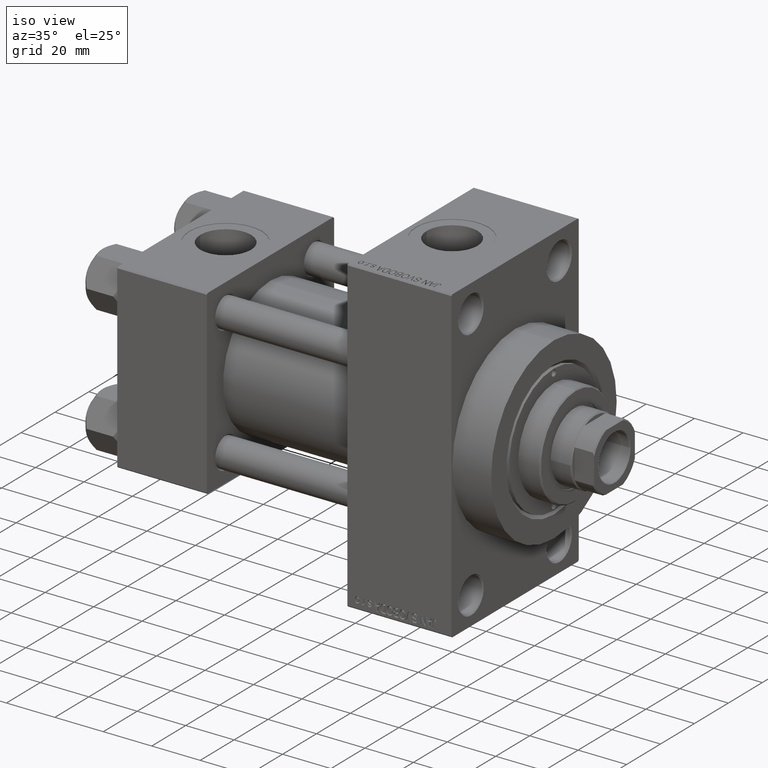
[diagram: clean part render]
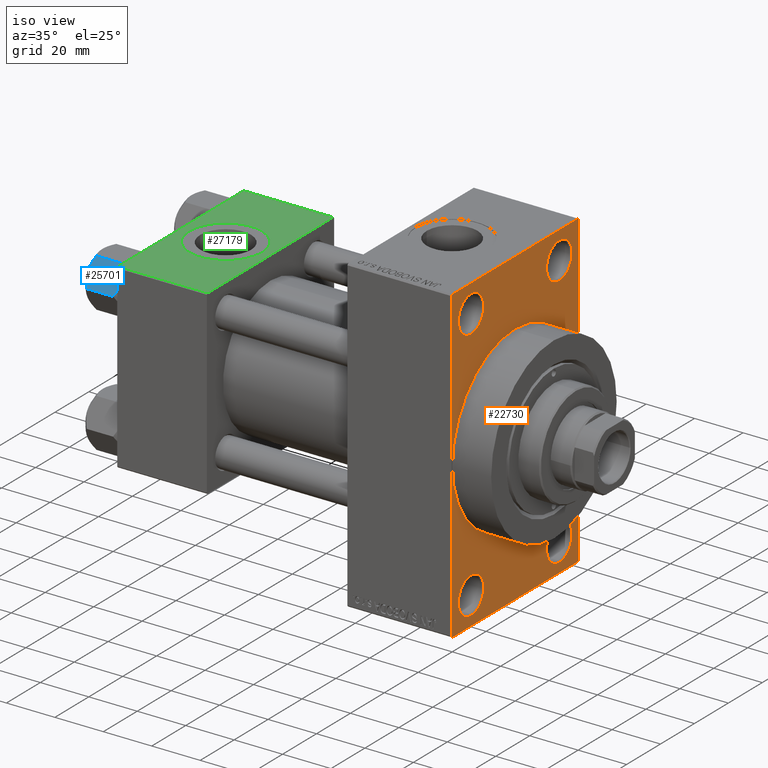
[diagram: same view with three faces highlighted in distinct colors, each labeled with its STEP entity id]
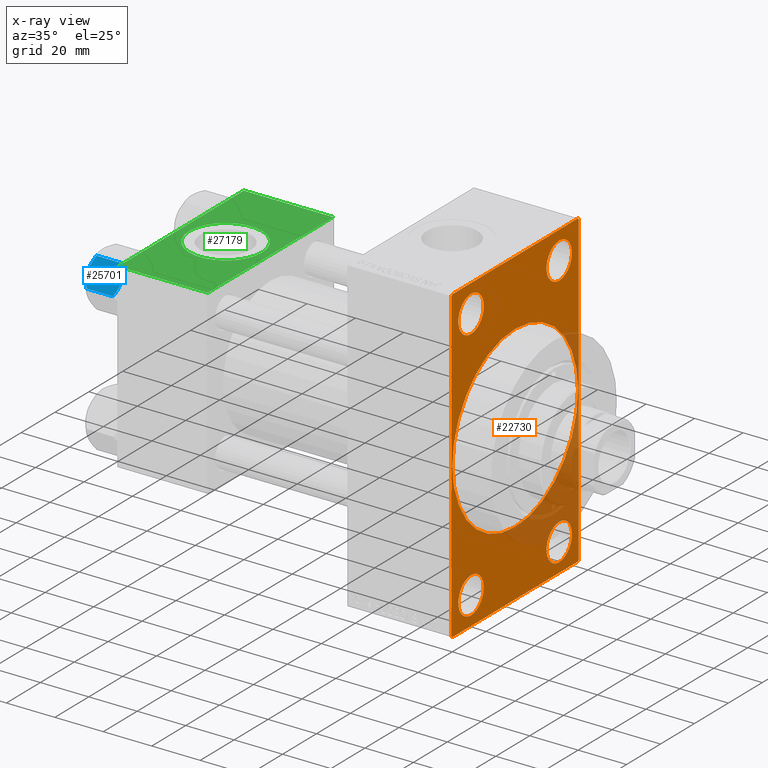
[diagram: x-ray of the same camera — body ghosted, the three highlighted faces saturated]
A machine part, iso view with three faces highlighted in distinct colors.
The next image is the same camera in x-ray (body ghosted, the three faces saturated) — at least one of them is partly hidden behind the body in this view.
Their STEP definitions:

[orange] entity #22730 — the highlighted planar face has unit normal (-1, 0, 0).
#53 = LINE ( 'NONE', #44809, #21056 ) ;
#406 = CIRCLE ( 'NONE', #29740, 7.500000000000007105 ) ;
#496 = ORIENTED_EDGE ( 'NONE', *, *, #21177, .T. ) ;
#627 = FACE_BOUND ( 'NONE', #29632, .T. ) ;
#1326 = EDGE_CURVE ( 'NONE', #9991, #41071, #30880, .T. ) ;
#1596 = EDGE_LOOP ( 'NONE', ( #31821, #29113 ) ) ;
#1713 = AXIS2_PLACEMENT_3D ( 'NONE', #2020, #40280, #37058 ) ;
#1742 = EDGE_CURVE ( 'NONE', #12420, #33083, #38916, .T. ) ;
#1823 = CARTESIAN_POINT ( 'NONE',  ( 138.0000000000000000, 37.50000000000000000, 63.49999999999998579 ) ) ;
#2020 = CARTESIAN_POINT ( 'NONE',  ( 138.0000000000000000, 26.00000000000000000, -52.49999999999999289 ) ) ;
#2037 = DIRECTION ( 'NONE',  ( 0.000000000000000000, 0.000000000000000000, 1.000000000000000000 ) ) ;
#2142 = CARTESIAN_POINT ( 'NONE',  ( 138.0000000000000000, 26.00000000000000000, 60.00000000000000000 ) ) ;
#2268 = ORIENTED_EDGE ( 'NONE', *, *, #1326, .T. ) ;
#3177 = CIRCLE ( 'NONE', #7130, 7.500000000000007105 ) ;
#3627 = PLANE ( 'NONE',  #25867 ) ;
#3871 = FACE_BOUND ( 'NONE', #11512, .T. ) ;
#3933 = DIRECTION ( 'NONE',  ( 1.000000000000000000, 0.000000000000000000, 0.000000000000000000 ) ) ;
#3993 = ORIENTED_EDGE ( 'NONE', *, *, #42059, .F. ) ;
#4116 = CARTESIAN_POINT ( 'NONE',  ( 138.0000000000000000, 0.000000000000000000, 0.000000000000000000 ) ) ;
#4257 = EDGE_CURVE ( 'NONE', #19310, #31043, #4825, .T. ) ;
#4568 = DIRECTION ( 'NONE',  ( -1.000000000000000000, 0.000000000000000000, -0.000000000000000000 ) ) ;
#4656 = EDGE_CURVE ( 'NONE', #26770, #16768, #19954, .T. ) ;
#4676 = CARTESIAN_POINT ( 'NONE',  ( 138.0000000000000000, 0.000000000000000000, 0.000000000000000000 ) ) ;
#4729 = ORIENTED_EDGE ( 'NONE', *, *, #29406, .T. ) ;
#4825 = LINE ( 'NONE', #16231, #28679 ) ;
#4972 = CARTESIAN_POINT ( 'NONE',  ( 138.0000000000000000, 37.49999999999999289, -63.50000000000001421 ) ) ;
#7130 = AXIS2_PLACEMENT_3D ( 'NONE', #39591, #12993, #39344 ) ;
#7180 = DIRECTION ( 'NONE',  ( 0.000000000000000000, -1.000000000000000000, -1.850371707708594563E-16 ) ) ;
#7503 = VECTOR ( 'NONE', #7180, 1000.000000000000000 ) ;
#7582 = FACE_OUTER_BOUND ( 'NONE', #29707, .T. ) ;
#7915 = LINE ( 'NONE', #34278, #7503 ) ;
#8129 = DIRECTION ( 'NONE',  ( -1.000000000000000000, 0.000000000000000000, -0.000000000000000000 ) ) ;
#9001 = VERTEX_POINT ( 'NONE', #27327 ) ;
#9168 = VERTEX_POINT ( 'NONE', #19007 ) ;
#9991 = VERTEX_POINT ( 'NONE', #41006 ) ;
#10655 = ORIENTED_EDGE ( 'NONE', *, *, #42772, .T. ) ;
#10907 = ORIENTED_EDGE ( 'NONE', *, *, #29522, .T. ) ;
#11321 = VERTEX_POINT ( 'NONE', #34966 ) ;
#11512 = EDGE_LOOP ( 'NONE', ( #3993, #19331 ) ) ;
#12265 = AXIS2_PLACEMENT_3D ( 'NONE', #43273, #4568, #45575 ) ;
#12315 = CARTESIAN_POINT ( 'NONE',  ( 138.0000000000000000, -25.99999999999999645, -60.00000000000000000 ) ) ;
#12420 = VERTEX_POINT ( 'NONE', #2142 ) ;
#12727 = CARTESIAN_POINT ( 'NONE',  ( 138.0000000000000000, 26.00000000000000000, 52.49999999999999289 ) ) ;
#12932 = DIRECTION ( 'NONE',  ( -1.000000000000000000, 0.000000000000000000, -0.000000000000000000 ) ) ;
#12993 = DIRECTION ( 'NONE',  ( -1.000000000000000000, 0.000000000000000000, -0.000000000000000000 ) ) ;
#13149 = CARTESIAN_POINT ( 'NONE',  ( 138.0000000000000000, 4.531193156845206793E-15, -37.00000000000000000 ) ) ;
#13411 = VERTEX_POINT ( 'NONE', #13932 ) ;
#13932 = CARTESIAN_POINT ( 'NONE',  ( 138.0000000000000000, 36.99999999999999289, -64.00000000000000000 ) ) ;
#15166 = ORIENTED_EDGE ( 'NONE', *, *, #35414, .T. ) ;
#15959 = EDGE_CURVE ( 'NONE', #33083, #12420, #406, .T. ) ;
#16231 = CARTESIAN_POINT ( 'NONE',  ( 138.0000000000000000, -37.49999999999999289, 63.99999999999997158 ) ) ;
#16655 = AXIS2_PLACEMENT_3D ( 'NONE', #31702, #24476, #20509 ) ;
#16768 = VERTEX_POINT ( 'NONE', #36398 ) ;
#16957 = DIRECTION ( 'NONE',  ( -1.000000000000000000, 0.000000000000000000, -0.000000000000000000 ) ) ;
#16980 = LINE ( 'NONE', #39612, #43291 ) ;
#18304 = CARTESIAN_POINT ( 'NONE',  ( 138.0000000000000000, 0.000000000000000000, 37.00000000000000000 ) ) ;
#18766 = DIRECTION ( 'NONE',  ( -0.000000000000000000, 0.000000000000000000, 1.000000000000000000 ) ) ;
#19007 = CARTESIAN_POINT ( 'NONE',  ( 138.0000000000000000, -36.99999999999993605, -64.00000000000001421 ) ) ;
#19310 = VERTEX_POINT ( 'NONE', #43758 ) ;
#19331 = ORIENTED_EDGE ( 'NONE', *, *, #48447, .F. ) ;
#19802 = DIRECTION ( 'NONE',  ( 0.000000000000000000, -5.421010862427522170E-17, -1.000000000000000000 ) ) ;
#19954 = CIRCLE ( 'NONE', #1713, 7.500000000000007105 ) ;
#20110 = DIRECTION ( 'NONE',  ( -0.000000000000000000, 0.7071067811865573427, 0.7071067811865378028 ) ) ;
#20509 = DIRECTION ( 'NONE',  ( 0.000000000000000000, 0.000000000000000000, 1.000000000000000000 ) ) ;
#21056 = VECTOR ( 'NONE', #25649, 999.9999999999998863 ) ;
#21104 = ORIENTED_EDGE ( 'NONE', *, *, #37612, .T. ) ;
#21177 = EDGE_CURVE ( 'NONE', #13411, #23675, #39011, .T. ) ;
#21604 = CARTESIAN_POINT ( 'NONE',  ( 138.0000000000000000, 0.000000000000000000, 0.000000000000000000 ) ) ;
#22348 = DIRECTION ( 'NONE',  ( -0.000000000000000000, -0.7071067811865524577, -0.7071067811865426878 ) ) ;
#22730 = ADVANCED_FACE ( 'NONE', ( #627, #41640, #37681, #45619, #3871, #7582 ), #3627, .F. ) ;
#23228 = DIRECTION ( 'NONE',  ( -1.000000000000000000, 0.000000000000000000, -0.000000000000000000 ) ) ;
#23675 = VERTEX_POINT ( 'NONE', #45137 ) ;
#24133 = ORIENTED_EDGE ( 'NONE', *, *, #25875, .F. ) ;
#24476 = DIRECTION ( 'NONE',  ( -1.000000000000000000, 0.000000000000000000, -0.000000000000000000 ) ) ;
#24577 = ORIENTED_EDGE ( 'NONE', *, *, #43335, .T. ) ;
#24669 = DIRECTION ( 'NONE',  ( 0.000000000000000000, 0.000000000000000000, -1.000000000000000000 ) ) ;
#24826 = VERTEX_POINT ( 'NONE', #45972 ) ;
#25297 = ORIENTED_EDGE ( 'NONE', *, *, #27575, .F. ) ;
#25649 = DIRECTION ( 'NONE',  ( 0.000000000000000000, 0.7071067811865574537, -0.7071067811865376918 ) ) ;
#25867 = AXIS2_PLACEMENT_3D ( 'NONE', #4116, #23228, #18766 ) ;
#25875 = EDGE_CURVE ( 'NONE', #42734, #23675, #27016, .T. ) ;
#26770 = VERTEX_POINT ( 'NONE', #43448 ) ;
#27016 = LINE ( 'NONE', #27262, #43183 ) ;
#27140 = CARTESIAN_POINT ( 'NONE',  ( 138.0000000000000000, 37.50000000000000000, 63.99999999999998579 ) ) ;
#27262 = CARTESIAN_POINT ( 'NONE',  ( 138.0000000000000000, 37.50000000000000000, 63.99999999999998579 ) ) ;
#27327 = CARTESIAN_POINT ( 'NONE',  ( 138.0000000000000000, -25.99999999999999645, -44.99999999999998579 ) ) ;
#27361 = EDGE_CURVE ( 'NONE', #16768, #26770, #32116, .T. ) ;
#27575 = EDGE_CURVE ( 'NONE', #13411, #9168, #7915, .T. ) ;
#27647 = CARTESIAN_POINT ( 'NONE',  ( 138.0000000000000000, -25.99999999999999645, -52.49999999999999289 ) ) ;
#27996 = DIRECTION ( 'NONE',  ( 0.000000000000000000, 0.000000000000000000, 1.000000000000000000 ) ) ;
#28321 = DIRECTION ( 'NONE',  ( 0.000000000000000000, 0.000000000000000000, 1.000000000000000000 ) ) ;
#28581 = VECTOR ( 'NONE', #48796, 1000.000000000000000 ) ;
#28679 = VECTOR ( 'NONE', #24669, 1000.000000000000000 ) ;
#29113 = ORIENTED_EDGE ( 'NONE', *, *, #27361, .T. ) ;
#29337 = CIRCLE ( 'NONE', #16655, 7.500000000000007105 ) ;
#29406 = EDGE_CURVE ( 'NONE', #42734, #9991, #16980, .T. ) ;
#29522 = EDGE_CURVE ( 'NONE', #31043, #9168, #53, .T. ) ;
#29632 = EDGE_LOOP ( 'NONE', ( #24577, #32060 ) ) ;
#29707 = EDGE_LOOP ( 'NONE', ( #40979, #10907, #25297, #496, #24133, #4729, #2268, #21104 ) ) ;
#29740 = AXIS2_PLACEMENT_3D ( 'NONE', #12727, #43058, #2037 ) ;
#30168 = EDGE_LOOP ( 'NONE', ( #10655, #15166 ) ) ;
#30682 = VERTEX_POINT ( 'NONE', #13149 ) ;
#30880 = LINE ( 'NONE', #27140, #28581 ) ;
#30998 = CARTESIAN_POINT ( 'NONE',  ( 138.0000000000000000, -36.99999999999995737, 63.99999999999997158 ) ) ;
#31043 = VERTEX_POINT ( 'NONE', #48051 ) ;
#31570 = VECTOR ( 'NONE', #22348, 1000.000000000000000 ) ;
#31702 = CARTESIAN_POINT ( 'NONE',  ( 138.0000000000000000, -25.99999999999999645, 52.50000000000000000 ) ) ;
#31821 = ORIENTED_EDGE ( 'NONE', *, *, #4656, .T. ) ;
#32060 = ORIENTED_EDGE ( 'NONE', *, *, #42709, .T. ) ;
#32073 = CARTESIAN_POINT ( 'NONE',  ( 138.0000000000000000, -25.99999999999999645, -52.49999999999999289 ) ) ;
#32085 = CARTESIAN_POINT ( 'NONE',  ( 138.0000000000000000, 26.00000000000000000, 44.99999999999998579 ) ) ;
#32116 = CIRCLE ( 'NONE', #12265, 7.500000000000007105 ) ;
#32134 = DIRECTION ( 'NONE',  ( 0.000000000000000000, 0.000000000000000000, 1.000000000000000000 ) ) ;
#32281 = CIRCLE ( 'NONE', #39413, 7.500000000000007105 ) ;
#32322 = ORIENTED_EDGE ( 'NONE', *, *, #1742, .T. ) ;
#32488 = CIRCLE ( 'NONE', #47557, 37.00000000000000000 ) ;
#33083 = VERTEX_POINT ( 'NONE', #32085 ) ;
#33558 = LINE ( 'NONE', #48712, #31570 ) ;
#34114 = AXIS2_PLACEMENT_3D ( 'NONE', #27647, #16957, #32134 ) ;
#34278 = CARTESIAN_POINT ( 'NONE',  ( 138.0000000000000000, 37.49999999999999289, -64.00000000000000000 ) ) ;
#34312 = VERTEX_POINT ( 'NONE', #18304 ) ;
#34966 = CARTESIAN_POINT ( 'NONE',  ( 138.0000000000000000, -25.99999999999999645, 44.99999999999999289 ) ) ;
#35403 = VECTOR ( 'NONE', #20110, 1000.000000000000000 ) ;
#35414 = EDGE_CURVE ( 'NONE', #9001, #36134, #32281, .T. ) ;
#35818 = DIRECTION ( 'NONE',  ( 0.000000000000000000, 0.000000000000000000, -1.000000000000000000 ) ) ;
#36134 = VERTEX_POINT ( 'NONE', #12315 ) ;
#36398 = CARTESIAN_POINT ( 'NONE',  ( 138.0000000000000000, 26.00000000000000000, -44.99999999999998579 ) ) ;
#37058 = DIRECTION ( 'NONE',  ( 0.000000000000000000, 0.000000000000000000, 1.000000000000000000 ) ) ;
#37612 = EDGE_CURVE ( 'NONE', #41071, #19310, #33558, .T. ) ;
#37681 = FACE_BOUND ( 'NONE', #1596, .T. ) ;
#38225 = DIRECTION ( 'NONE',  ( 0.000000000000000000, 0.000000000000000000, -1.000000000000000000 ) ) ;
#38916 = CIRCLE ( 'NONE', #41297, 7.500000000000007105 ) ;
#39011 = LINE ( 'NONE', #4972, #35403 ) ;
#39344 = DIRECTION ( 'NONE',  ( 0.000000000000000000, 0.000000000000000000, 1.000000000000000000 ) ) ;
#39413 = AXIS2_PLACEMENT_3D ( 'NONE', #32073, #12932, #28321 ) ;
#39591 = CARTESIAN_POINT ( 'NONE',  ( 138.0000000000000000, -25.99999999999999645, 52.50000000000000000 ) ) ;
#39612 = CARTESIAN_POINT ( 'NONE',  ( 138.0000000000000000, 36.99999999999997158, 63.99999999999998579 ) ) ;
#39751 = AXIS2_PLACEMENT_3D ( 'NONE', #21604, #39772, #35818 ) ;
#39772 = DIRECTION ( 'NONE',  ( 1.000000000000000000, 0.000000000000000000, 0.000000000000000000 ) ) ;
#40280 = DIRECTION ( 'NONE',  ( -1.000000000000000000, 0.000000000000000000, -0.000000000000000000 ) ) ;
#40530 = CIRCLE ( 'NONE', #39751, 37.00000000000000000 ) ;
#40979 = ORIENTED_EDGE ( 'NONE', *, *, #4257, .T. ) ;
#41006 = CARTESIAN_POINT ( 'NONE',  ( 138.0000000000000000, 36.99999999999997158, 63.99999999999998579 ) ) ;
#41071 = VERTEX_POINT ( 'NONE', #30998 ) ;
#41297 = AXIS2_PLACEMENT_3D ( 'NONE', #46900, #8129, #27996 ) ;
#41348 = EDGE_LOOP ( 'NONE', ( #45026, #32322 ) ) ;
#41640 = FACE_BOUND ( 'NONE', #30168, .T. ) ;
#42059 = EDGE_CURVE ( 'NONE', #34312, #30682, #32488, .T. ) ;
#42060 = CIRCLE ( 'NONE', #34114, 7.500000000000007105 ) ;
#42709 = EDGE_CURVE ( 'NONE', #24826, #11321, #3177, .T. ) ;
#42734 = VERTEX_POINT ( 'NONE', #1823 ) ;
#42772 = EDGE_CURVE ( 'NONE', #36134, #9001, #42060, .T. ) ;
#43058 = DIRECTION ( 'NONE',  ( -1.000000000000000000, 0.000000000000000000, -0.000000000000000000 ) ) ;
#43183 = VECTOR ( 'NONE', #19802, 1000.000000000000000 ) ;
#43273 = CARTESIAN_POINT ( 'NONE',  ( 138.0000000000000000, 26.00000000000000000, -52.49999999999999289 ) ) ;
#43291 = VECTOR ( 'NONE', #48036, 1000.000000000000000 ) ;
#43335 = EDGE_CURVE ( 'NONE', #11321, #24826, #29337, .T. ) ;
#43448 = CARTESIAN_POINT ( 'NONE',  ( 138.0000000000000000, 26.00000000000000000, -60.00000000000000000 ) ) ;
#43758 = CARTESIAN_POINT ( 'NONE',  ( 138.0000000000000000, -37.49999999999999289, 63.49999999999994316 ) ) ;
#44809 = CARTESIAN_POINT ( 'NONE',  ( 138.0000000000000000, -36.99999999999993605, -64.00000000000001421 ) ) ;
#45026 = ORIENTED_EDGE ( 'NONE', *, *, #15959, .T. ) ;
#45137 = CARTESIAN_POINT ( 'NONE',  ( 138.0000000000000000, 37.49999999999999289, -63.50000000000001421 ) ) ;
#45575 = DIRECTION ( 'NONE',  ( 0.000000000000000000, 0.000000000000000000, 1.000000000000000000 ) ) ;
#45619 = FACE_BOUND ( 'NONE', #41348, .T. ) ;
#45972 = CARTESIAN_POINT ( 'NONE',  ( 138.0000000000000000, -25.99999999999999645, 60.00000000000000711 ) ) ;
#46900 = CARTESIAN_POINT ( 'NONE',  ( 138.0000000000000000, 26.00000000000000000, 52.49999999999999289 ) ) ;
#47557 = AXIS2_PLACEMENT_3D ( 'NONE', #4676, #3933, #38225 ) ;
#48036 = DIRECTION ( 'NONE',  ( 0.000000000000000000, -0.7071067811865672237, 0.7071067811865279218 ) ) ;
#48051 = CARTESIAN_POINT ( 'NONE',  ( 138.0000000000000000, -37.49999999999999289, -63.49999999999997158 ) ) ;
#48447 = EDGE_CURVE ( 'NONE', #30682, #34312, #40530, .T. ) ;
#48712 = CARTESIAN_POINT ( 'NONE',  ( 138.0000000000000000, -37.49999999999999289, 63.49999999999994316 ) ) ;
#48796 = DIRECTION ( 'NONE',  ( 0.000000000000000000, -1.000000000000000000, -1.850371707708594563E-16 ) ) ;

[blue] entity #25701 — the highlighted planar face has unit normal (0, 0.866, -0.5).
#1360 = CARTESIAN_POINT ( 'NONE',  ( -9.974696630283190757, -2.849749030213787115, -0.3002673809867329457 ) ) ;
#1676 = VERTEX_POINT ( 'NONE', #42680 ) ;
#3850 = CARTESIAN_POINT ( 'NONE',  ( -7.455303369716809847, -7.213466161761383333, -13.69973261901326644 ) ) ;
#3939 = CARTESIAN_POINT ( 'NONE',  ( -11.61999999999999922, 6.288644352490894150E-15, -14.00000000000000000 ) ) ;
#4908 = VERTEX_POINT ( 'NONE', #8418 ) ;
#6195 = DIRECTION ( 'NONE',  ( 0.8660254037844390407, 0.4999999999999995004, 0.000000000000000000 ) ) ;
#7088 = B_SPLINE_CURVE_WITH_KNOTS ( 'NONE', 3,
 ( #40789, #37323, #7460, #13937, #14677, #29836 ),
 .UNSPECIFIED., .F., .F.,
 ( 4, 2, 4 ),
 ( 0.006022845781655596781, 0.009013049135303641962, 0.01200325248895168714 ),
 .UNSPECIFIED. ) ;
#7460 = CARTESIAN_POINT ( 'NONE',  ( -9.716999946243698005, -3.296092779912219939, -13.84547602999602667 ) ) ;
#8304 = CARTESIAN_POINT ( 'NONE',  ( -11.61999999999999922, 6.270720075409452187E-15, -1.556784808024810562 ) ) ;
#8418 = CARTESIAN_POINT ( 'NONE',  ( -11.61999999999999922, 6.270720075510426383E-15, -12.44321519197518988 ) ) ;
#11602 = ORIENTED_EDGE ( 'NONE', *, *, #29935, .F. ) ;
#12073 = B_SPLINE_CURVE_WITH_KNOTS ( 'NONE', 3,
 ( #46929, #17082, #35255, #20077, #20327, #32258 ),
 .UNSPECIFIED., .F., .F.,
 ( 4, 2, 4 ),
 ( 0.006022845781655586372, 0.009013049135303635023, 0.01200325248895168367 ),
 .UNSPECIFIED. ) ;
#12289 = CARTESIAN_POINT ( 'NONE',  ( -9.729165168613654657, -3.275021996682076608, -0.1903979688073365595 ) ) ;
#12312 = ORIENTED_EDGE ( 'NONE', *, *, #35702, .F. ) ;
#12432 = EDGE_LOOP ( 'NONE', ( #11602, #31145, #20346, #41693, #12312, #20678 ) ) ;
#13476 = CARTESIAN_POINT ( 'NONE',  ( -8.715000000000006963, -5.031607595987586556, 0.000000000000000000 ) ) ;
#13937 = CARTESIAN_POINT ( 'NONE',  ( -10.69662495661650148, -1.599332489581326344, -13.28854452935655317 ) ) ;
#14123 = PLANE ( 'NONE',  #26572 ) ;
#14677 = CARTESIAN_POINT ( 'NONE',  ( -11.16498164529022219, -0.7881149087337223635, -12.89823354668505040 ) ) ;
#15509 = CARTESIAN_POINT ( 'NONE',  ( -11.16445427487471420, -0.7890283410877914072, -1.101239082899528432 ) ) ;
#16249 = CARTESIAN_POINT ( 'NONE',  ( -8.715000000000006963, -5.031607595987586556, 0.000000000000000000 ) ) ;
#16412 = CARTESIAN_POINT ( 'NONE',  ( -5.810000000000000497, -10.06321519197517844, -12.44321519197518633 ) ) ;
#17082 = CARTESIAN_POINT ( 'NONE',  ( -8.209704053696567527, -5.906805847843720869, 6.159623592433269699E-15 ) ) ;
#18251 = VERTEX_POINT ( 'NONE', #16412 ) ;
#18484 = LINE ( 'NONE', #30161, #32937 ) ;
#18984 = CARTESIAN_POINT ( 'NONE',  ( -8.460569896449619876, -5.472293462311856871, -14.00000000000000888 ) ) ;
#19244 = CARTESIAN_POINT ( 'NONE',  ( -10.69859855102500923, -1.595914123792257611, -0.7141438259524607313 ) ) ;
#20077 = CARTESIAN_POINT ( 'NONE',  ( -6.733375043383495573, -8.463882702393842550, -0.7114554706434480513 ) ) ;
#20327 = CARTESIAN_POINT ( 'NONE',  ( -6.265018354709776638, -9.275100283241451748, -1.101766453314952043 ) ) ;
#20346 = ORIENTED_EDGE ( 'NONE', *, *, #43983, .F. ) ;
#20678 = ORIENTED_EDGE ( 'NONE', *, *, #31399, .F. ) ;
#21823 = CARTESIAN_POINT ( 'NONE',  ( -5.810000000000000497, -10.06321519197517844, -14.00000000000000000 ) ) ;
#24311 = VECTOR ( 'NONE', #37516, 1000.000000000000000 ) ;
#24582 = DIRECTION ( 'NONE',  ( -0.4999999999999994449, 0.8660254037844389297, 0.000000000000000000 ) ) ;
#25701 = ADVANCED_FACE ( 'NONE', ( #40247 ), #14123, .F. ) ;
#25706 = CARTESIAN_POINT ( 'NONE',  ( -8.202333004087902779, -5.919572880271047666, -13.96005881939309745 ) ) ;
#25818 = CARTESIAN_POINT ( 'NONE',  ( -8.715000000000006963, -5.031607595987586556, -14.00000000000000000 ) ) ;
#26572 = AXIS2_PLACEMENT_3D ( 'NONE', #21823, #6195, #24582 ) ;
#28206 = EDGE_CURVE ( 'NONE', #18251, #38033, #18484, .T. ) ;
#29836 = CARTESIAN_POINT ( 'NONE',  ( -11.61999999999999922, 6.270720075510426383E-15, -12.44321519197518988 ) ) ;
#29935 = EDGE_CURVE ( 'NONE', #18251, #33152, #41649, .T. ) ;
#30161 = CARTESIAN_POINT ( 'NONE',  ( -5.810000000000000497, -10.06321519197517844, -14.00000000000000000 ) ) ;
#30273 = LINE ( 'NONE', #3939, #24311 ) ;
#30884 = EDGE_CURVE ( 'NONE', #1676, #43470, #36204, .T. ) ;
#30926 = CARTESIAN_POINT ( 'NONE',  ( -9.227666995912100489, -4.143642311704120118, -0.03994118060690279165 ) ) ;
#31145 = ORIENTED_EDGE ( 'NONE', *, *, #28206, .T. ) ;
#31399 = EDGE_CURVE ( 'NONE', #33152, #4908, #7088, .T. ) ;
#31901 = CARTESIAN_POINT ( 'NONE',  ( -5.810000000000000497, -10.06321519197517844, -1.556784808024813893 ) ) ;
#32258 = CARTESIAN_POINT ( 'NONE',  ( -5.810000000000000497, -10.06321519197517844, -1.556784808024813893 ) ) ;
#32937 = VECTOR ( 'NONE', #40871, 1000.000000000000000 ) ;
#33152 = VERTEX_POINT ( 'NONE', #25818 ) ;
#33189 = CARTESIAN_POINT ( 'NONE',  ( -5.810000000000000497, -10.06321519197517844, -12.44321519197518633 ) ) ;
#34168 = CARTESIAN_POINT ( 'NONE',  ( -8.715000000000006963, -5.031607595987586556, -14.00000000000000000 ) ) ;
#34917 = CARTESIAN_POINT ( 'NONE',  ( -8.969430103550386946, -4.590921729663310025, 6.662949392646161370E-15 ) ) ;
#35255 = CARTESIAN_POINT ( 'NONE',  ( -7.713000053756304375, -6.767122412062951398, -0.1545239700039803266 ) ) ;
#35702 = EDGE_CURVE ( 'NONE', #4908, #1676, #30273, .T. ) ;
#36204 = B_SPLINE_CURVE_WITH_KNOTS ( 'NONE', 3,
 ( #8304, #15509, #19244, #1360, #12289, #30926, #34917, #16249 ),
 .UNSPECIFIED., .F., .F.,
 ( 4, 2, 2, 4 ),
 ( 2.544312114893457383E-07, 0.003011550106433538623, 0.004517197944044561847, 0.006022845781655586372 ),
 .UNSPECIFIED. ) ;
#37323 = CARTESIAN_POINT ( 'NONE',  ( -9.220295946303428636, -4.156409344131446026, -14.00000000000000711 ) ) ;
#37516 = DIRECTION ( 'NONE',  ( -0.000000000000000000, -0.000000000000000000, 1.000000000000000000 ) ) ;
#38033 = VERTEX_POINT ( 'NONE', #31901 ) ;
#40247 = FACE_OUTER_BOUND ( 'NONE', #12432, .T. ) ;
#40645 = CARTESIAN_POINT ( 'NONE',  ( -7.700834831386346835, -6.788193195293090731, -13.80960203119266438 ) ) ;
#40789 = CARTESIAN_POINT ( 'NONE',  ( -8.715000000000006963, -5.031607595987586556, -14.00000000000000000 ) ) ;
#40871 = DIRECTION ( 'NONE',  ( -0.000000000000000000, -0.000000000000000000, 1.000000000000000000 ) ) ;
#40883 = CARTESIAN_POINT ( 'NONE',  ( -6.265545725125283738, -9.274186850887380373, -12.89876091710046779 ) ) ;
#41649 = B_SPLINE_CURVE_WITH_KNOTS ( 'NONE', 3,
 ( #33189, #40883, #48833, #3850, #40645, #25706, #18984, #34168 ),
 .UNSPECIFIED., .F., .F.,
 ( 4, 2, 2, 4 ),
 ( 2.544312114906334931E-07, 0.003011550106433543393, 0.004517197944044570521, 0.006022845781655596781 ),
 .UNSPECIFIED. ) ;
#41693 = ORIENTED_EDGE ( 'NONE', *, *, #30884, .F. ) ;
#42680 = CARTESIAN_POINT ( 'NONE',  ( -11.61999999999999922, 6.270720075409452187E-15, -1.556784808024810562 ) ) ;
#43470 = VERTEX_POINT ( 'NONE', #13476 ) ;
#43983 = EDGE_CURVE ( 'NONE', #43470, #38033, #12073, .T. ) ;
#46929 = CARTESIAN_POINT ( 'NONE',  ( -8.715000000000006963, -5.031607595987586556, 0.000000000000000000 ) ) ;
#48833 = CARTESIAN_POINT ( 'NONE',  ( -6.731401448974989599, -8.467301068182909063, -13.28585617404753272 ) ) ;

[green] entity #27179 — the highlighted planar face has unit normal (0, 0, -1).
#429 = DIRECTION ( 'NONE',  ( 1.000000000000000000, 0.000000000000000000, 0.000000000000000000 ) ) ;
#3092 = PLANE ( 'NONE',  #5924 ) ;
#3493 = CARTESIAN_POINT ( 'NONE',  ( 37.00000000000000000, 37.49999999999999289, 37.50000000000000000 ) ) ;
#5924 = AXIS2_PLACEMENT_3D ( 'NONE', #25442, #14256, #40865 ) ;
#6241 = LINE ( 'NONE', #3493, #44122 ) ;
#6909 = DIRECTION ( 'NONE',  ( -1.000000000000000000, 0.000000000000000000, 0.000000000000000000 ) ) ;
#7120 = CARTESIAN_POINT ( 'NONE',  ( 18.50000000000000000, -5.204170427930421283E-15, 37.50000000000000000 ) ) ;
#7855 = DIRECTION ( 'NONE',  ( 1.000000000000000000, 0.000000000000000000, 0.000000000000000000 ) ) ;
#8530 = AXIS2_PLACEMENT_3D ( 'NONE', #23689, #19962, #31166 ) ;
#8792 = ORIENTED_EDGE ( 'NONE', *, *, #38373, .F. ) ;
#9700 = EDGE_CURVE ( 'NONE', #14294, #24258, #32629, .T. ) ;
#10854 = DIRECTION ( 'NONE',  ( 0.000000000000000000, 0.000000000000000000, 1.000000000000000000 ) ) ;
#11368 = CARTESIAN_POINT ( 'NONE',  ( 37.00000000000000000, -37.00000000000000711, 37.49999999999999289 ) ) ;
#11608 = CARTESIAN_POINT ( 'NONE',  ( 0.000000000000000000, 36.99999999999999289, 37.50000000000000000 ) ) ;
#12773 = ORIENTED_EDGE ( 'NONE', *, *, #9700, .T. ) ;
#13893 = EDGE_CURVE ( 'NONE', #24258, #31001, #45431, .T. ) ;
#14256 = DIRECTION ( 'NONE',  ( 0.000000000000000000, 9.251858538542971581E-17, -1.000000000000000000 ) ) ;
#14294 = VERTEX_POINT ( 'NONE', #36887 ) ;
#14513 = ORIENTED_EDGE ( 'NONE', *, *, #13893, .T. ) ;
#14939 = CARTESIAN_POINT ( 'NONE',  ( 33.50000000000000000, -5.204170427930421283E-15, 37.50000000000000000 ) ) ;
#15088 = LINE ( 'NONE', #11608, #37194 ) ;
#18100 = VERTEX_POINT ( 'NONE', #14939 ) ;
#19962 = DIRECTION ( 'NONE',  ( 0.000000000000000000, 0.000000000000000000, 1.000000000000000000 ) ) ;
#20702 = CARTESIAN_POINT ( 'NONE',  ( 0.000000000000000000, 37.49999999999999289, 37.50000000000000000 ) ) ;
#21164 = VERTEX_POINT ( 'NONE', #32298 ) ;
#21623 = VECTOR ( 'NONE', #32145, 1000.000000000000000 ) ;
#22817 = CIRCLE ( 'NONE', #8530, 15.00000000000000355 ) ;
#23689 = CARTESIAN_POINT ( 'NONE',  ( 18.50000000000000000, -5.204170427930421283E-15, 37.50000000000000000 ) ) ;
#24227 = EDGE_LOOP ( 'NONE', ( #12773, #14513, #46552, #27681 ) ) ;
#24258 = VERTEX_POINT ( 'NONE', #45109 ) ;
#24970 = EDGE_CURVE ( 'NONE', #21164, #14294, #15088, .T. ) ;
#25442 = CARTESIAN_POINT ( 'NONE',  ( 37.00000000000000000, 37.49999999999999289, 37.50000000000000000 ) ) ;
#26425 = FACE_OUTER_BOUND ( 'NONE', #24227, .T. ) ;
#27179 = ADVANCED_FACE ( 'NONE', ( #48325, #26425 ), #3092, .F. ) ;
#27681 = ORIENTED_EDGE ( 'NONE', *, *, #24970, .T. ) ;
#28883 = VECTOR ( 'NONE', #429, 1000.000000000000000 ) ;
#30547 = EDGE_CURVE ( 'NONE', #21164, #31001, #6241, .T. ) ;
#31001 = VERTEX_POINT ( 'NONE', #47332 ) ;
#31166 = DIRECTION ( 'NONE',  ( 1.000000000000000000, 0.000000000000000000, 0.000000000000000000 ) ) ;
#32145 = DIRECTION ( 'NONE',  ( 0.000000000000000000, -1.000000000000000000, -9.251858538542971581E-17 ) ) ;
#32298 = CARTESIAN_POINT ( 'NONE',  ( 37.00000000000000000, 36.99999999999999289, 37.50000000000000000 ) ) ;
#32629 = LINE ( 'NONE', #20702, #21623 ) ;
#32711 = ORIENTED_EDGE ( 'NONE', *, *, #37826, .F. ) ;
#34907 = EDGE_LOOP ( 'NONE', ( #8792, #32711 ) ) ;
#36874 = VERTEX_POINT ( 'NONE', #47593 ) ;
#36887 = CARTESIAN_POINT ( 'NONE',  ( 0.000000000000000000, 36.99999999999999289, 37.50000000000000000 ) ) ;
#37194 = VECTOR ( 'NONE', #6909, 1000.000000000000000 ) ;
#37826 = EDGE_CURVE ( 'NONE', #36874, #18100, #22817, .T. ) ;
#37950 = AXIS2_PLACEMENT_3D ( 'NONE', #7120, #10854, #7855 ) ;
#38373 = EDGE_CURVE ( 'NONE', #18100, #36874, #40328, .T. ) ;
#40328 = CIRCLE ( 'NONE', #37950, 15.00000000000000355 ) ;
#40865 = DIRECTION ( 'NONE',  ( 0.000000000000000000, 1.000000000000000000, 9.251858538542971581E-17 ) ) ;
#44122 = VECTOR ( 'NONE', #48972, 1000.000000000000000 ) ;
#45109 = CARTESIAN_POINT ( 'NONE',  ( 0.000000000000000000, -37.00000000000000711, 37.49999999999999289 ) ) ;
#45431 = LINE ( 'NONE', #11368, #28883 ) ;
#46552 = ORIENTED_EDGE ( 'NONE', *, *, #30547, .F. ) ;
#47332 = CARTESIAN_POINT ( 'NONE',  ( 37.00000000000000000, -37.00000000000000711, 37.49999999999999289 ) ) ;
#47593 = CARTESIAN_POINT ( 'NONE',  ( 3.499999999999997780, -3.367200229209391300E-15, 37.50000000000000000 ) ) ;
#48325 = FACE_BOUND ( 'NONE', #34907, .T. ) ;
#48972 = DIRECTION ( 'NONE',  ( 0.000000000000000000, -1.000000000000000000, -9.251858538542971581E-17 ) ) ;